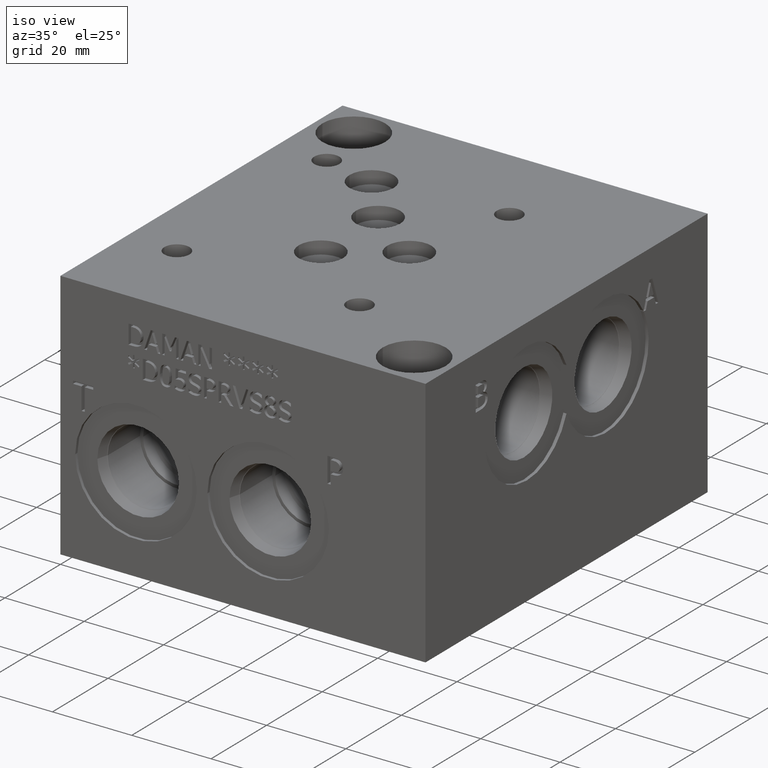
[diagram: clean part render]
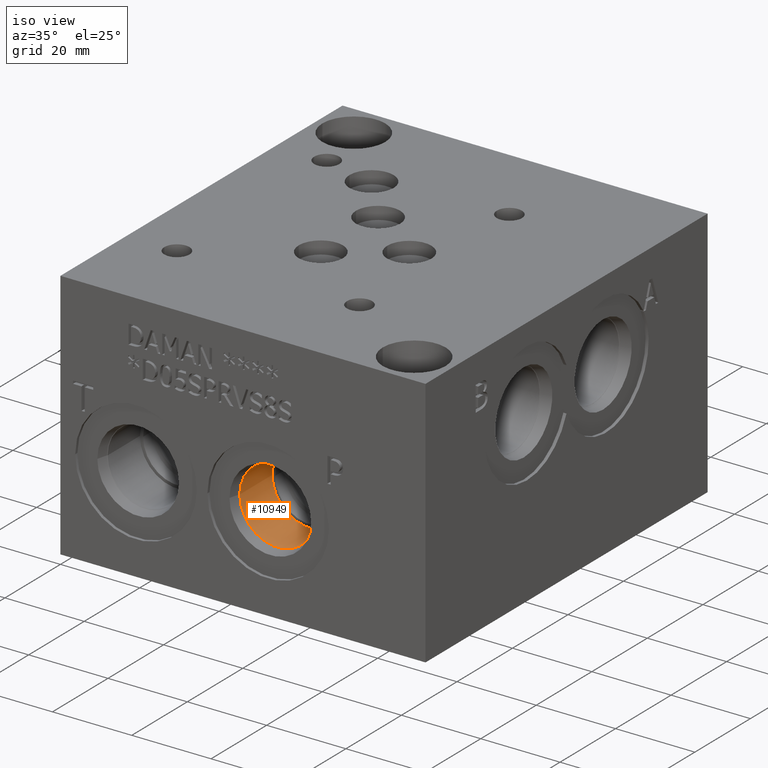
[diagram: same view with one face highlighted and labeled with its STEP entity id]
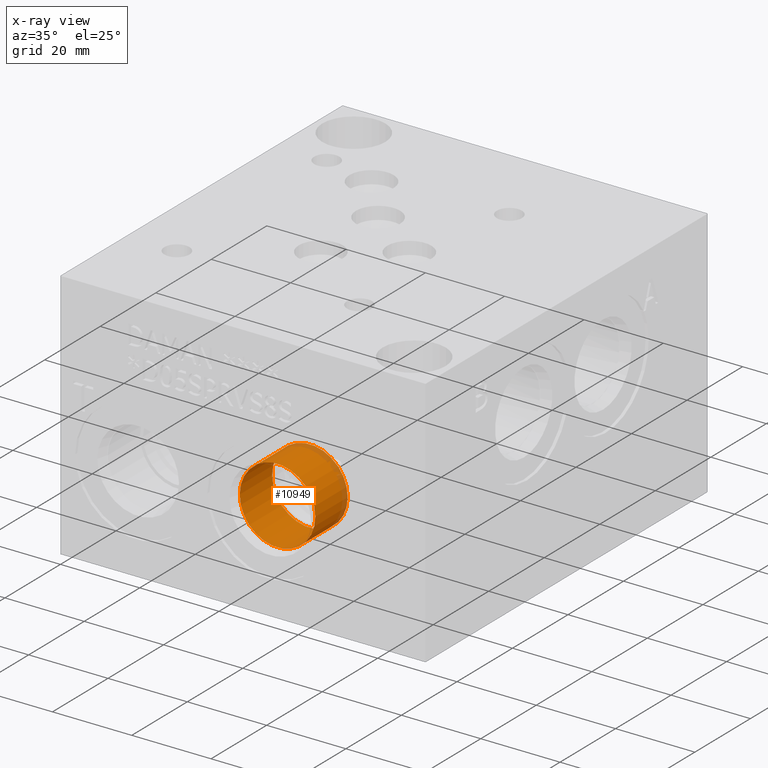
[diagram: x-ray of the same camera — body ghosted, the highlighted face saturated]
A machine part, iso view. The second image highlights one B-rep face of the part: STEP entity #10949.
The next image is the same camera in x-ray: the body ghosted, the highlighted face saturated — about 8% of this face is hidden behind the body in this view.
In plain terms, the highlighted cylindrical surface (bore or boss wall) has radius 9.525 mm, axis along (0, -1, 0).
Its self-contained STEP definition (entity closure, byte-faithful):
#47=CYLINDRICAL_SURFACE('',#11494,9.525);
#1552=FACE_OUTER_BOUND('',#2171,.T.);
#2171=EDGE_LOOP('',(#10116,#10117,#10118,#10119,#10120));
#2674=CIRCLE('',#11466,9.525);
#2689=CIRCLE('',#11491,9.525);
#2690=CIRCLE('',#11492,9.525);
#3734=LINE('',#18830,#4734);
#4734=VECTOR('',#13549,9.525);
#5702=VERTEX_POINT('',#18772);
#5719=VERTEX_POINT('',#18823);
#5720=VERTEX_POINT('',#18824);
#7194=EDGE_CURVE('',#5702,#5702,#2674,.T.);
#7217=EDGE_CURVE('',#5719,#5720,#2689,.T.);
#7218=EDGE_CURVE('',#5720,#5719,#2690,.T.);
#7220=EDGE_CURVE('',#5702,#5720,#3734,.T.);
#10116=ORIENTED_EDGE('',*,*,#7194,.T.);
#10117=ORIENTED_EDGE('',*,*,#7220,.T.);
#10118=ORIENTED_EDGE('',*,*,#7217,.F.);
#10119=ORIENTED_EDGE('',*,*,#7218,.F.);
#10120=ORIENTED_EDGE('',*,*,#7220,.F.);
#10949=ADVANCED_FACE('',(#1552),#47,.F.);
#11466=AXIS2_PLACEMENT_3D('',#18774,#13483,#13484);
#11491=AXIS2_PLACEMENT_3D('',#18825,#13541,#13542);
#11492=AXIS2_PLACEMENT_3D('',#18826,#13543,#13544);
#11494=AXIS2_PLACEMENT_3D('',#18829,#13547,#13548);
#13483=DIRECTION('center_axis',(0.,-1.,0.));
#13484=DIRECTION('ref_axis',(1.,0.,0.));
#13541=DIRECTION('center_axis',(0.,-1.,0.));
#13542=DIRECTION('ref_axis',(1.,0.,0.));
#13543=DIRECTION('center_axis',(0.,-1.,0.));
#13544=DIRECTION('ref_axis',(1.,0.,0.));
#13547=DIRECTION('center_axis',(0.,-1.,0.));
#13548=DIRECTION('ref_axis',(1.,0.,0.));
#13549=DIRECTION('',(0.,1.,0.));
#18772=CARTESIAN_POINT('',(42.8498,3.4036,23.8252));
#18774=CARTESIAN_POINT('Origin',(52.3748,3.4036,23.8252));
#18823=CARTESIAN_POINT('',(61.8998,15.0622,23.8252));
#18824=CARTESIAN_POINT('',(42.8498,15.0622,23.8252));
#18825=CARTESIAN_POINT('Origin',(52.3748,15.0622,23.8252));
#18826=CARTESIAN_POINT('Origin',(52.3748,15.0622,23.8252));
#18829=CARTESIAN_POINT('Origin',(52.3748,7.5311,23.8252));
#18830=CARTESIAN_POINT('',(42.8498,7.5311,23.8252));